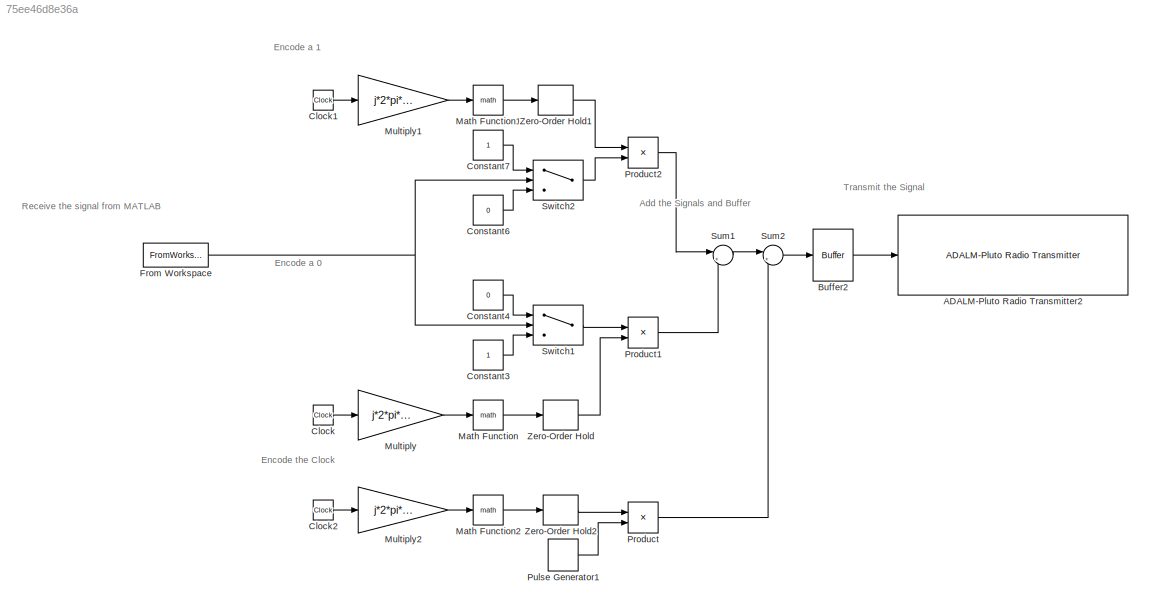
MODEL slx_75ee46d8e36a
KIND model
CONFIG AbsTol = auto
CONFIG EnableMultiTasking = off
CONFIG FixedStep = auto
CONFIG MaxStep = auto
CONFIG MinStep = auto
CONFIG RelTol = 1e-3
CONFIG SampleTimeConstraint = Unconstrained
CONFIG SolverName = VariableStepAuto
CONFIG StartTime = 0.0
CONFIG StopTime = inf
BLOCK [Reference] ADALM-Pluto Radio Transmitter2  REF=plutoradiolib/ADALM-Pluto Radio
Transmitter
  SourceBlock = plutoradiolib/ADALM-Pluto Radio\nTransmitter
  SourceType = comm.SDRTxPluto
BLOCK [Buffer] Buffer2
  N = 22452
  OutputFrames = off
BLOCK [Clock] Clock
  Decimation = 200000
BLOCK [Clock] Clock1
  Decimation = 200000
BLOCK [Clock] Clock2
  Decimation = 200000
BLOCK [Constant] Constant3
  SampleTime = 1/200000
BLOCK [Constant] Constant4
  SampleTime = 1/200000
  Value = 0
BLOCK [Constant] Constant6
  SampleTime = 1/200000
  Value = 0
BLOCK [Constant] Constant7
  SampleTime = 1/200000
BLOCK [FromWorkspace] From Workspace
  Interpolate = off
  OutputAfterFinalValue = Setting to zero
  SampleTime = .000005
  VariableName = signal
BLOCK [Math] Math Function
BLOCK [Math] Math Function1
BLOCK [Math] Math Function2
BLOCK [Gain] Multiply
  Gain = j*2*pi*30000
BLOCK [Gain] Multiply1
  Gain = j*2*pi*20000
BLOCK [Gain] Multiply2
  Gain = j*2*pi*40000
BLOCK [Product] Product
BLOCK [Product] Product1
BLOCK [Product] Product2
BLOCK [DiscretePulseGenerator] Pulse Generator1
  Period = 40000*5*5/10*2
  PulseWidth = 20000*5*5/10*2
  SampleTime = 5/1000000
BLOCK [Sum] Sum1
  Inputs = |++
BLOCK [Sum] Sum2
  Inputs = |++
BLOCK [Switch] Switch1
  Criteria = u2 > Threshold
  InputSameDT = off
  SaturateOnIntegerOverflow = off
  Threshold = 0.5
BLOCK [Switch] Switch2
  Criteria = u2 > Threshold
  InputSameDT = off
  SaturateOnIntegerOverflow = off
  Threshold = 0.5
BLOCK [ZeroOrderHold] Zero-Order Hold
  SampleTime = 1/200000
BLOCK [ZeroOrderHold] Zero-Order Hold1
  SampleTime = 1/200000
BLOCK [ZeroOrderHold] Zero-Order Hold2
  SampleTime = 1/200000
ANNOTATION (root): Add the Signals and Buffer
ANNOTATION (root): Encode a 0
ANNOTATION (root): Encode a 1
ANNOTATION (root): Encode the Clock
ANNOTATION (root): Receive the signal from MATLAB
ANNOTATION (root): Transmit the Signal
LINE Buffer2:1 -> ADALM-Pluto Radio Transmitter2:1
LINE Clock1:1 -> Multiply1:1
LINE Clock2:1 -> Multiply2:1
LINE Clock:1 -> Multiply:1
LINE Constant3:1 -> Switch1:3
LINE Constant4:1 -> Switch1:1
LINE Constant6:1 -> Switch2:3
LINE Constant7:1 -> Switch2:1
NET From Workspace:1 -> Switch1:2, Switch2:2
LINE Math Function1:1 -> Zero-Order Hold1:1
LINE Math Function2:1 -> Zero-Order Hold2:1
LINE Math Function:1 -> Zero-Order Hold:1
LINE Multiply1:1 -> Math Function1:1
LINE Multiply2:1 -> Math Function2:1
LINE Multiply:1 -> Math Function:1
LINE Product1:1 -> Sum1:2
LINE Product2:1 -> Sum1:1
LINE Product:1 -> Sum2:2
LINE Pulse Generator1:1 -> Product:2
LINE Sum1:1 -> Sum2:1
LINE Sum2:1 -> Buffer2:1
LINE Switch1:1 -> Product1:1
LINE Switch2:1 -> Product2:2
LINE Zero-Order Hold1:1 -> Product2:1
LINE Zero-Order Hold2:1 -> Product:1
LINE Zero-Order Hold:1 -> Product1:2
note: NET lines group one-source signal fan-out (src -> all destinations, sorted); 1:1 wires keep LINE
